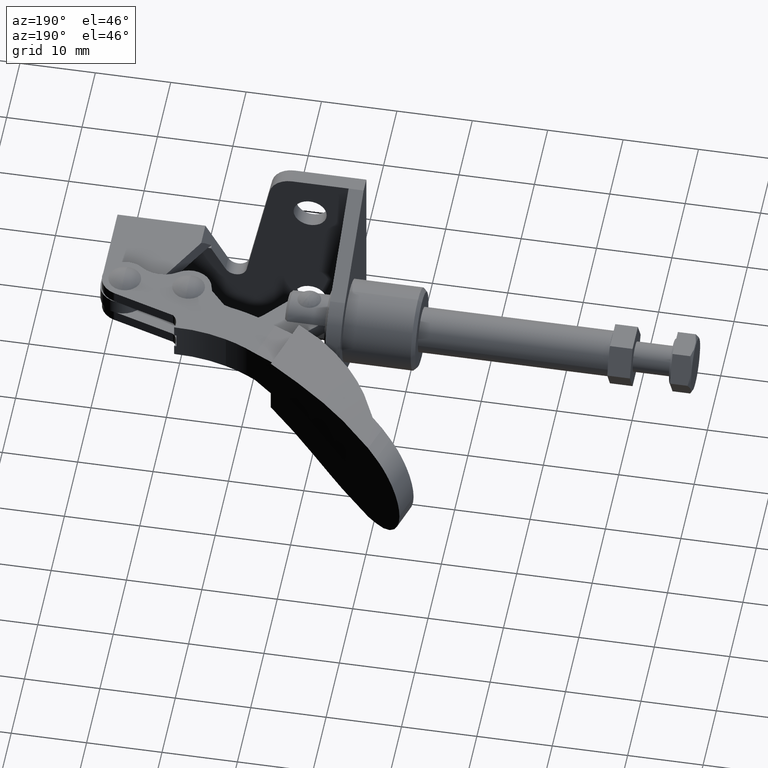
[diagram: clean part render]
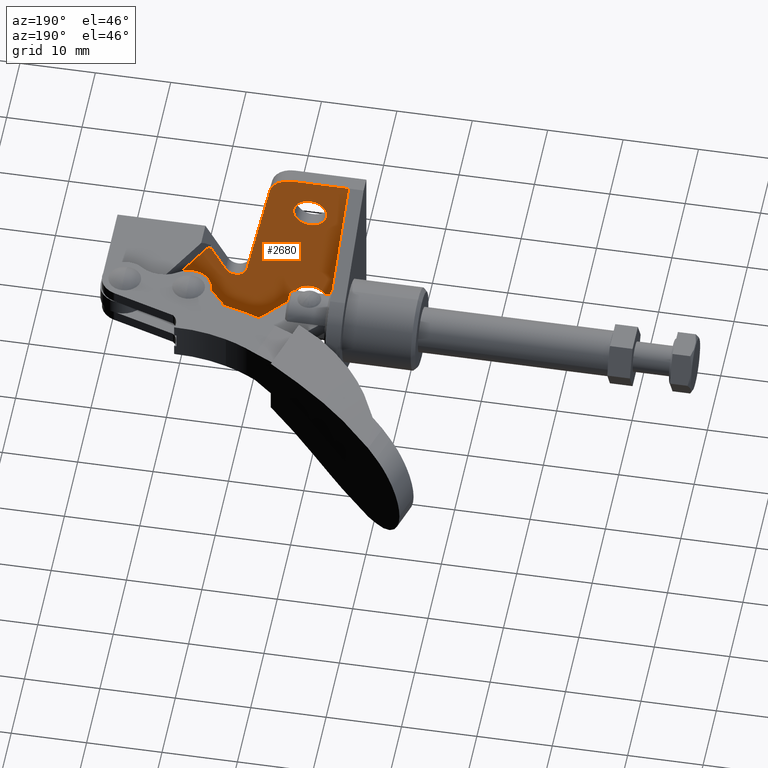
[diagram: same view with one face highlighted and labeled with its STEP entity id]
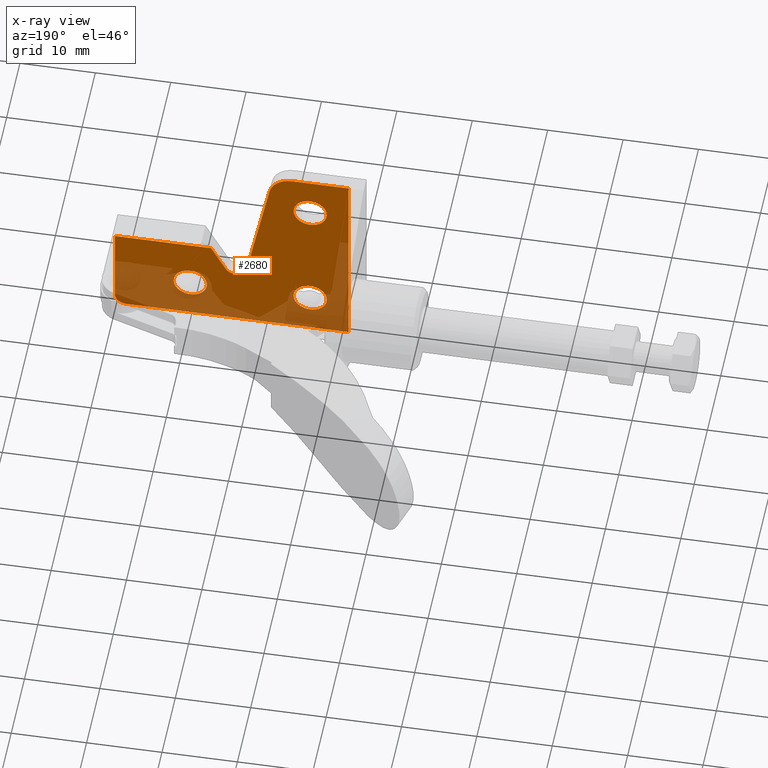
[diagram: x-ray of the same camera — body ghosted, the highlighted face saturated]
A machine part, auxiliary view. The second image highlights one B-rep face of the part: STEP entity #2680.
The next image is the same camera in x-ray: the body ghosted, the highlighted face saturated — about 33% of this face is hidden behind the body in this view.
In plain terms, the highlighted planar face has unit normal (0, 1, 0).
Its self-contained STEP definition (entity closure, byte-faithful):
#27 = VECTOR ( 'NONE', #3877, 1000.000000000000000 ) ;
#48 = AXIS2_PLACEMENT_3D ( 'NONE', #5005, #2111, #5472 ) ;
#60 = ORIENTED_EDGE ( 'NONE', *, *, #5221, .T. ) ;
#267 = VECTOR ( 'NONE', #4184, 1000.000000000000000 ) ;
#288 = CARTESIAN_POINT ( 'NONE',  ( -25.89999999999997700, 1.999999999999989600, 21.44999999999901200 ) ) ;
#339 = CARTESIAN_POINT ( 'NONE',  ( -31.00000000000003600, 2.000000000000001800, 27.00000000000000000 ) ) ;
#362 = DIRECTION ( 'NONE',  ( 1.000000000000000000, -2.406229337645246000E-015, -0.0000000000000000000 ) ) ;
#403 = EDGE_LOOP ( 'NONE', ( #1042, #4669 ) ) ;
#637 = VERTEX_POINT ( 'NONE', #5544 ) ;
#649 = DIRECTION ( 'NONE',  ( 1.000000000000000000, -2.312964634635735200E-015, 0.0000000000000000000 ) ) ;
#677 = VERTEX_POINT ( 'NONE', #1464 ) ;
#748 = CARTESIAN_POINT ( 'NONE',  ( 0.0000000000000000000, 1.999999999999927200, 1.499999999999966700 ) ) ;
#763 = CARTESIAN_POINT ( 'NONE',  ( -23.46800119621678600, 1.999999999999983600, 26.99999999999901200 ) ) ;
#764 = DIRECTION ( 'NONE',  ( 1.000000000000000000, -2.365532012695671500E-015, 0.0000000000000000000 ) ) ;
#774 = VECTOR ( 'NONE', #1051, 1000.000000000000200 ) ;
#803 = VECTOR ( 'NONE', #5149, 1000.000000000000000 ) ;
#826 = FACE_BOUND ( 'NONE', #3792, .T. ) ;
#866 = EDGE_CURVE ( 'NONE', #2591, #5309, #1998, .T. ) ;
#869 = CARTESIAN_POINT ( 'NONE',  ( -28.09999999999995500, 1.999999999999994900, 21.44999999999901200 ) ) ;
#926 = VERTEX_POINT ( 'NONE', #4094 ) ;
#1042 = ORIENTED_EDGE ( 'NONE', *, *, #4159, .F. ) ;
#1051 = DIRECTION ( 'NONE',  ( 0.1966676889009981700, -4.760347513228859100E-016, -0.9804702035974066600 ) ) ;
#1136 = DIRECTION ( 'NONE',  ( -2.406229337645246000E-015, -1.000000000000000000, 0.0000000000000000000 ) ) ;
#1171 = VERTEX_POINT ( 'NONE', #5703 ) ;
#1184 = CARTESIAN_POINT ( 'NONE',  ( -25.89999999999997700, 1.999999999999989600, 5.549999999998979300 ) ) ;
#1202 = CARTESIAN_POINT ( 'NONE',  ( -25.89999999999997700, 1.999999999999989600, 5.549999999998979300 ) ) ;
#1315 = EDGE_CURVE ( 'NONE', #1171, #3190, #3769, .T. ) ;
#1354 = CARTESIAN_POINT ( 'NONE',  ( -31.00000000000003600, 2.000000000000001800, 27.00000000000000000 ) ) ;
#1403 = DIRECTION ( 'NONE',  ( 0.0000000000000000000, 0.0000000000000000000, -1.000000000000000000 ) ) ;
#1430 = VERTEX_POINT ( 'NONE', #1493 ) ;
#1464 = CARTESIAN_POINT ( 'NONE',  ( -12.34454633239415400, 1.999999999999958500, 12.49999999999999300 ) ) ;
#1493 = CARTESIAN_POINT ( 'NONE',  ( -23.70000000000000300, 1.999999999999984500, 21.44999999999901200 ) ) ;
#1506 = ORIENTED_EDGE ( 'NONE', *, *, #6064, .T. ) ;
#1507 = CARTESIAN_POINT ( 'NONE',  ( -1.499999999999968900, 1.999999999999930700, 1.499999999999966700 ) ) ;
#1539 = ORIENTED_EDGE ( 'NONE', *, *, #5532, .T. ) ;
#1548 = LINE ( 'NONE', #4678, #3931 ) ;
#1601 = CARTESIAN_POINT ( 'NONE',  ( -10.00000000000006900, 1.999999999999950900, 5.549999999998979300 ) ) ;
#1655 = EDGE_LOOP ( 'NONE', ( #2929, #2439 ) ) ;
#1667 = DIRECTION ( 'NONE',  ( 1.000000000000000000, -2.365532012695667900E-015, 0.0000000000000000000 ) ) ;
#1694 = DIRECTION ( 'NONE',  ( 1.000000000000000000, -2.365532012695667900E-015, 0.0000000000000000000 ) ) ;
#1695 = LINE ( 'NONE', #3207, #267 ) ;
#1744 = ORIENTED_EDGE ( 'NONE', *, *, #5726, .T. ) ;
#1910 = ORIENTED_EDGE ( 'NONE', *, *, #866, .T. ) ;
#1960 = DIRECTION ( 'NONE',  ( 1.000000000000000000, -2.406229337645246000E-015, -0.0000000000000000000 ) ) ;
#1998 = CIRCLE ( 'NONE', #3920, 1.499999999999970000 ) ;
#2007 = CARTESIAN_POINT ( 'NONE',  ( -1.499999999999968900, 1.999999999999930700, -3.469446951953614200E-015 ) ) ;
#2037 = EDGE_CURVE ( 'NONE', #5919, #5309, #3981, .T. ) ;
#2049 = CARTESIAN_POINT ( 'NONE',  ( -31.00000000000002800, 1.999999999999946300, 26.99999999999990800 ) ) ;
#2079 = DIRECTION ( 'NONE',  ( 1.000000000000000000, -2.365532012695671500E-015, 0.0000000000000000000 ) ) ;
#2080 = LINE ( 'NONE', #339, #803 ) ;
#2101 = FACE_OUTER_BOUND ( 'NONE', #3457, .T. ) ;
#2111 = DIRECTION ( 'NONE',  ( 2.406229337645246000E-015, 1.000000000000000000, 0.0000000000000000000 ) ) ;
#2171 = AXIS2_PLACEMENT_3D ( 'NONE', #1354, #6165, #3276 ) ;
#2285 = ORIENTED_EDGE ( 'NONE', *, *, #1315, .T. ) ;
#2297 = DIRECTION ( 'NONE',  ( 2.406229337645246000E-015, 1.000000000000000000, 0.0000000000000000000 ) ) ;
#2367 = DIRECTION ( 'NONE',  ( 1.000000000000000000, -2.312964634635789200E-015, 0.0000000000000000000 ) ) ;
#2439 = ORIENTED_EDGE ( 'NONE', *, *, #3063, .F. ) ;
#2583 = CARTESIAN_POINT ( 'NONE',  ( -25.89999999999997700, 1.999999999999989600, 21.44999999999901200 ) ) ;
#2591 = VERTEX_POINT ( 'NONE', #748 ) ;
#2676 = CIRCLE ( 'NONE', #2984, 2.199999999999979700 ) ;
#2680 = ADVANCED_FACE ( 'NONE', ( #826, #5942, #4658, #2101 ), #4202, .T. ) ;
#2734 = VECTOR ( 'NONE', #1960, 1000.000000000000000 ) ;
#2736 = VERTEX_POINT ( 'NONE', #2838 ) ;
#2838 = CARTESIAN_POINT ( 'NONE',  ( -7.800000000000093100, 1.999999999999945800, 5.549999999998979300 ) ) ;
#2929 = ORIENTED_EDGE ( 'NONE', *, *, #3639, .F. ) ;
#2984 = AXIS2_PLACEMENT_3D ( 'NONE', #1184, #4540, #1667 ) ;
#3017 = VERTEX_POINT ( 'NONE', #5444 ) ;
#3059 = DIRECTION ( 'NONE',  ( 1.000000000000000000, -2.365532012695671500E-015, 0.0000000000000000000 ) ) ;
#3063 = EDGE_CURVE ( 'NONE', #3017, #5086, #3812, .T. ) ;
#3109 = EDGE_CURVE ( 'NONE', #1430, #3311, #5927, .T. ) ;
#3190 = VERTEX_POINT ( 'NONE', #4650 ) ;
#3207 = CARTESIAN_POINT ( 'NONE',  ( -31.00000000000003600, 2.000000000000001800, 27.00000000000000000 ) ) ;
#3276 = DIRECTION ( 'NONE',  ( 1.000000000000000000, -2.406229337645246000E-015, -0.0000000000000000000 ) ) ;
#3311 = VERTEX_POINT ( 'NONE', #869 ) ;
#3333 = AXIS2_PLACEMENT_3D ( 'NONE', #1202, #4570, #1694 ) ;
#3369 = CARTESIAN_POINT ( 'NONE',  ( -31.00000000000003600, 2.000000000000001800, 12.49999999999999300 ) ) ;
#3385 = CARTESIAN_POINT ( 'NONE',  ( -31.00000000000003600, 2.000000000000001800, 12.49999999999999300 ) ) ;
#3435 = ORIENTED_EDGE ( 'NONE', *, *, #3830, .F. ) ;
#3457 = EDGE_LOOP ( 'NONE', ( #4330, #60, #1744, #6070, #1910, #4759, #3435, #5789, #1539, #1506, #2285 ) ) ;
#3593 = EDGE_CURVE ( 'NONE', #3311, #1430, #4093, .T. ) ;
#3627 = CIRCLE ( 'NONE', #4935, 3.000000000000120800 ) ;
#3632 = DIRECTION ( 'NONE',  ( 2.406229337645246000E-015, 1.000000000000000000, 0.0000000000000000000 ) ) ;
#3639 = EDGE_CURVE ( 'NONE', #5086, #3017, #2676, .T. ) ;
#3647 = CARTESIAN_POINT ( 'NONE',  ( 0.0000000000000000000, 1.999999999999927200, 12.49999999999999300 ) ) ;
#3752 = VERTEX_POINT ( 'NONE', #3647 ) ;
#3767 = VECTOR ( 'NONE', #1403, 1000.000000000000000 ) ;
#3769 = CIRCLE ( 'NONE', #4337, 1.500000000000004900 ) ;
#3792 = EDGE_LOOP ( 'NONE', ( #3970, #4229 ) ) ;
#3804 = CARTESIAN_POINT ( 'NONE',  ( -20.52659058542444700, 1.999999999999976700, 24.59000306670191100 ) ) ;
#3812 = CIRCLE ( 'NONE', #3333, 2.199999999999979700 ) ;
#3830 = EDGE_CURVE ( 'NONE', #4735, #5919, #2080, .T. ) ;
#3860 = CIRCLE ( 'NONE', #48, 2.199999999999976200 ) ;
#3877 = DIRECTION ( 'NONE',  ( 1.000000000000000000, -2.406229337645246000E-015, -0.0000000000000000000 ) ) ;
#3920 = AXIS2_PLACEMENT_3D ( 'NONE', #1507, #5730, #2367 ) ;
#3931 = VECTOR ( 'NONE', #5629, 1000.000000000000300 ) ;
#3947 = VERTEX_POINT ( 'NONE', #3804 ) ;
#3970 = ORIENTED_EDGE ( 'NONE', *, *, #3109, .F. ) ;
#3981 = LINE ( 'NONE', #6107, #4834 ) ;
#4003 = LINE ( 'NONE', #3369, #2734 ) ;
#4093 = CIRCLE ( 'NONE', #5351, 2.199999999999976200 ) ;
#4094 = CARTESIAN_POINT ( 'NONE',  ( -12.20000000000004500, 1.999999999999956300, 5.549999999998979300 ) ) ;
#4159 = EDGE_CURVE ( 'NONE', #2736, #926, #4321, .T. ) ;
#4184 = DIRECTION ( 'NONE',  ( 1.000000000000000000, -2.406229337645246000E-015, -0.0000000000000000000 ) ) ;
#4197 = EDGE_CURVE ( 'NONE', #926, #2736, #3860, .T. ) ;
#4202 = PLANE ( 'NONE',  #2171 ) ;
#4216 = CARTESIAN_POINT ( 'NONE',  ( -23.69999999999999900, 1.999999999999984500, 5.549999999998979300 ) ) ;
#4229 = ORIENTED_EDGE ( 'NONE', *, *, #3593, .F. ) ;
#4266 = CARTESIAN_POINT ( 'NONE',  ( 0.0000000000000000000, 1.999999999999927200, 27.00000000000000000 ) ) ;
#4304 = LINE ( 'NONE', #3385, #27 ) ;
#4321 = CIRCLE ( 'NONE', #5006, 2.199999999999976200 ) ;
#4330 = ORIENTED_EDGE ( 'NONE', *, *, #4367, .T. ) ;
#4337 = AXIS2_PLACEMENT_3D ( 'NONE', #4983, #1136, #649 ) ;
#4361 = EDGE_CURVE ( 'NONE', #4735, #4918, #1695, .T. ) ;
#4367 = EDGE_CURVE ( 'NONE', #3190, #637, #1548, .T. ) ;
#4540 = DIRECTION ( 'NONE',  ( 2.406229337645246000E-015, 1.000000000000000000, 0.0000000000000000000 ) ) ;
#4570 = DIRECTION ( 'NONE',  ( 2.406229337645246000E-015, 1.000000000000000000, 0.0000000000000000000 ) ) ;
#4650 = CARTESIAN_POINT ( 'NONE',  ( -14.69565185651551800, 1.999999999999962700, 8.977166023404864200 ) ) ;
#4658 = FACE_BOUND ( 'NONE', #403, .T. ) ;
#4669 = ORIENTED_EDGE ( 'NONE', *, *, #4197, .F. ) ;
#4678 = CARTESIAN_POINT ( 'NONE',  ( -12.51314941585926700, 1.999999999999957100, 12.94566795318825200 ) ) ;
#4735 = VERTEX_POINT ( 'NONE', #2049 ) ;
#4743 = CARTESIAN_POINT ( 'NONE',  ( -31.00000000000003600, 2.000000000000001800, 0.0000000000000000000 ) ) ;
#4759 = ORIENTED_EDGE ( 'NONE', *, *, #2037, .F. ) ;
#4834 = VECTOR ( 'NONE', #362, 1000.000000000000000 ) ;
#4894 = CARTESIAN_POINT ( 'NONE',  ( -17.48070530539610700, 1.999999999999969400, 9.404998466647516200 ) ) ;
#4918 = VERTEX_POINT ( 'NONE', #763 ) ;
#4935 = AXIS2_PLACEMENT_3D ( 'NONE', #5187, #2297, #5661 ) ;
#4965 = DIRECTION ( 'NONE',  ( 2.406229337645246000E-015, 1.000000000000000000, 0.0000000000000000000 ) ) ;
#4972 = AXIS2_PLACEMENT_3D ( 'NONE', #288, #3632, #764 ) ;
#4983 = CARTESIAN_POINT ( 'NONE',  ( -16.00999999999999800, 1.999999999999965800, 9.699999999999015200 ) ) ;
#5005 = CARTESIAN_POINT ( 'NONE',  ( -10.00000000000006900, 1.999999999999950900, 5.549999999998979300 ) ) ;
#5006 = AXIS2_PLACEMENT_3D ( 'NONE', #1601, #4965, #2079 ) ;
#5086 = VERTEX_POINT ( 'NONE', #4216 ) ;
#5149 = DIRECTION ( 'NONE',  ( 0.0000000000000000000, 0.0000000000000000000, -1.000000000000000000 ) ) ;
#5187 = CARTESIAN_POINT ( 'NONE',  ( -23.46800119621678600, 1.999999999999983600, 23.99999999999889900 ) ) ;
#5221 = EDGE_CURVE ( 'NONE', #637, #677, #4003, .T. ) ;
#5309 = VERTEX_POINT ( 'NONE', #2007 ) ;
#5351 = AXIS2_PLACEMENT_3D ( 'NONE', #2583, #5950, #3059 ) ;
#5444 = CARTESIAN_POINT ( 'NONE',  ( -28.09999999999995900, 1.999999999999994900, 5.549999999998979300 ) ) ;
#5472 = DIRECTION ( 'NONE',  ( 1.000000000000000000, -2.365532012695671500E-015, 0.0000000000000000000 ) ) ;
#5532 = EDGE_CURVE ( 'NONE', #4918, #3947, #3627, .T. ) ;
#5544 = CARTESIAN_POINT ( 'NONE',  ( -12.75824729227852700, 1.999999999999927200, 12.49999999999999300 ) ) ;
#5574 = LINE ( 'NONE', #4894, #774 ) ;
#5629 = DIRECTION ( 'NONE',  ( 0.4818893177294326100, -9.779251414504692600E-016, 0.8762320956563174300 ) ) ;
#5661 = DIRECTION ( 'NONE',  ( 1.000000000000000000, -2.457524924300377800E-015, 0.0000000000000000000 ) ) ;
#5703 = CARTESIAN_POINT ( 'NONE',  ( -17.48070530539610700, 1.999999999999969400, 9.404998466647516200 ) ) ;
#5726 = EDGE_CURVE ( 'NONE', #677, #3752, #4304, .T. ) ;
#5730 = DIRECTION ( 'NONE',  ( 2.406229337645246000E-015, 1.000000000000000000, 0.0000000000000000000 ) ) ;
#5789 = ORIENTED_EDGE ( 'NONE', *, *, #4361, .T. ) ;
#5919 = VERTEX_POINT ( 'NONE', #4743 ) ;
#5927 = CIRCLE ( 'NONE', #4972, 2.199999999999976200 ) ;
#5936 = EDGE_CURVE ( 'NONE', #3752, #2591, #6188, .T. ) ;
#5942 = FACE_BOUND ( 'NONE', #1655, .T. ) ;
#5950 = DIRECTION ( 'NONE',  ( 2.406229337645246000E-015, 1.000000000000000000, 0.0000000000000000000 ) ) ;
#6064 = EDGE_CURVE ( 'NONE', #3947, #1171, #5574, .T. ) ;
#6070 = ORIENTED_EDGE ( 'NONE', *, *, #5936, .T. ) ;
#6107 = CARTESIAN_POINT ( 'NONE',  ( -31.00000000000003600, 2.000000000000001800, 0.0000000000000000000 ) ) ;
#6165 = DIRECTION ( 'NONE',  ( 2.406229337645246000E-015, 1.000000000000000000, 0.0000000000000000000 ) ) ;
#6188 = LINE ( 'NONE', #4266, #3767 ) ;